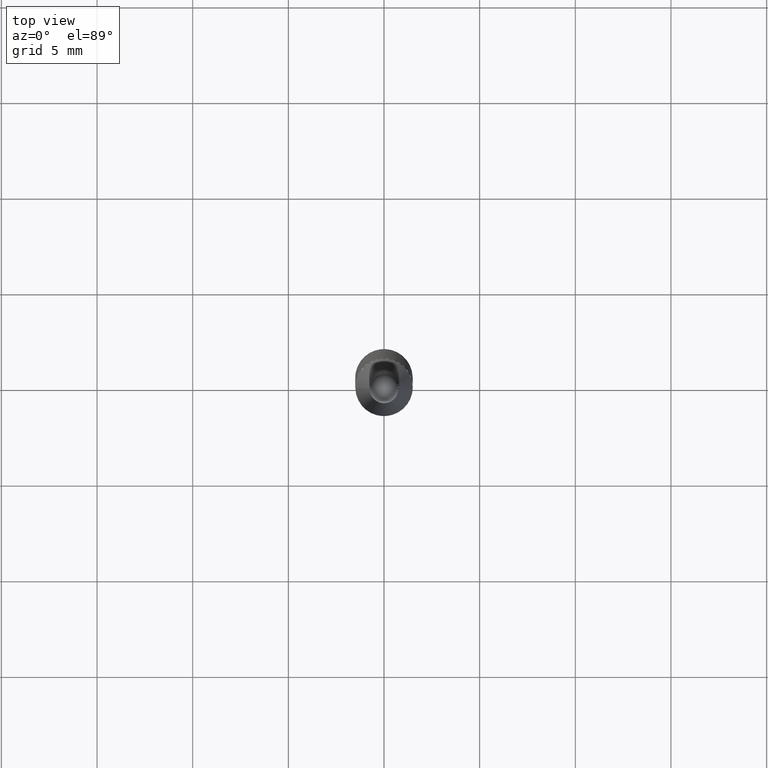
[diagram: clean part render]
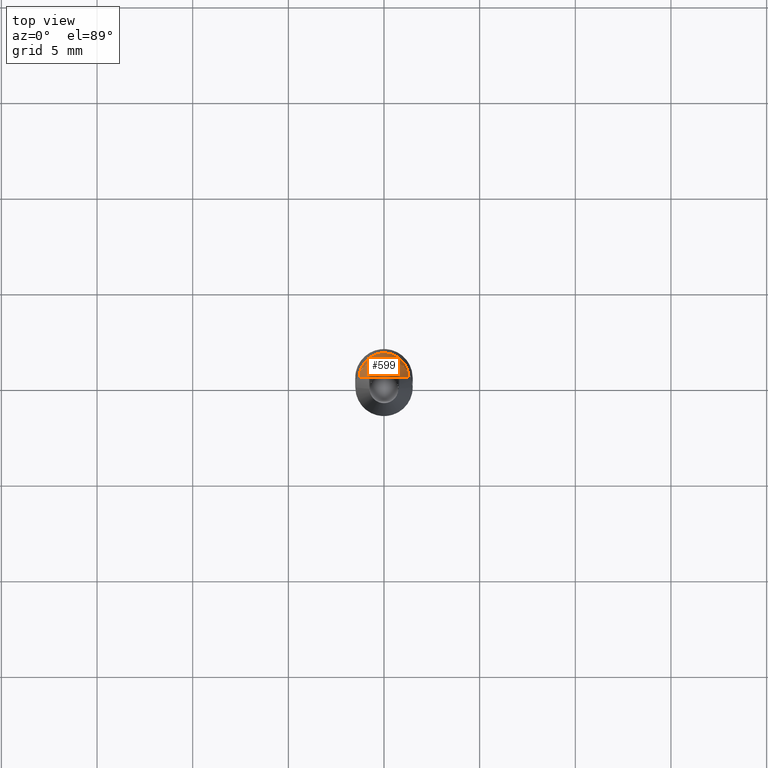
[diagram: same view with one face highlighted and labeled with its STEP entity id]
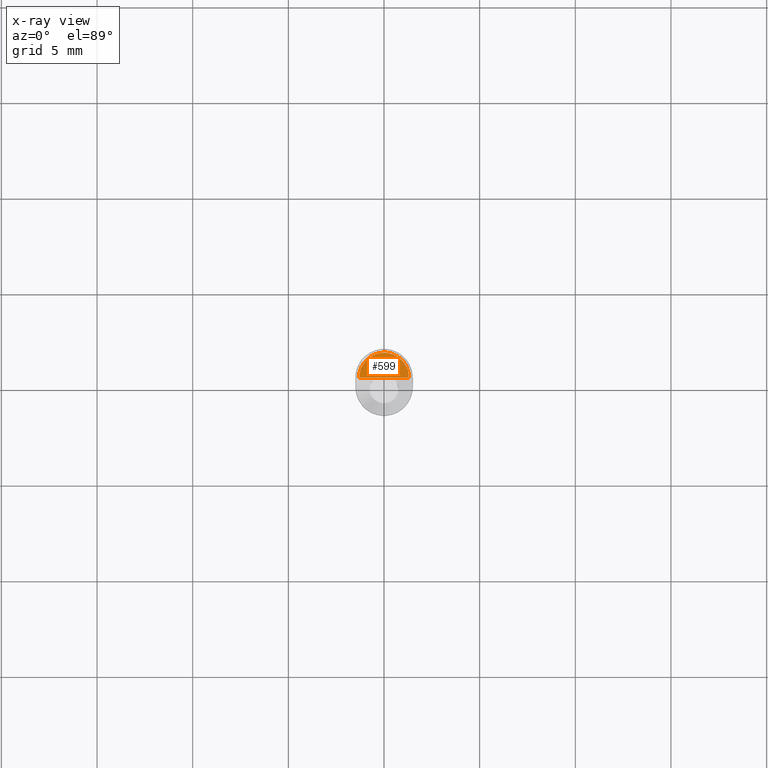
[diagram: x-ray of the same camera — body ghosted, the highlighted face saturated]
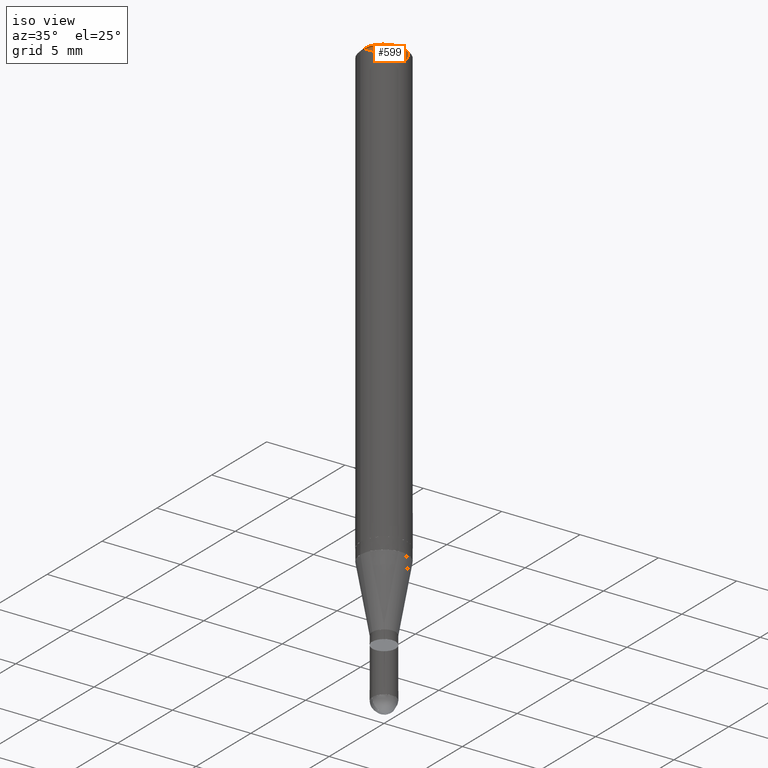
[diagram: same view with one face highlighted and labeled with its STEP entity id]
A machine part, top view. The second image highlights one B-rep face of the part: STEP entity #599.
The next image is the same camera in x-ray: the body ghosted, the highlighted face saturated — about 0% of this face is hidden behind the body in this view.
A second angle (iso view) of the same face is appended — the face is thin or edge-on in the first view.
In plain terms, the highlighted face is a freeform B-spline surface patch.
Its self-contained STEP definition (entity closure, byte-faithful):
#334=CARTESIAN_POINT('',(1.3,0.0,28.5));
#335=CARTESIAN_POINT('',(1.3,1.3,28.5));
#336=CARTESIAN_POINT('',(0.0,1.3,28.5));
#337=CARTESIAN_POINT('',(-1.3,1.3,28.5));
#338=CARTESIAN_POINT('',(-1.3,0.0,28.5));
#339=CARTESIAN_POINT('',(0.0,0.0,28.5));
#584=(
BOUNDED_SURFACE()
B_SPLINE_SURFACE(1,2,(
(#334,#335,#336,#337,#338),
(#339,#339,#339,#339,#339)
), .UNSPECIFIED.,.F.,.F.,.F.)
B_SPLINE_SURFACE_WITH_KNOTS((2,2),(3,2,3),(
0.0,1.0),(
0.0,0.5,1.0), .UNSPECIFIED.)
GEOMETRIC_REPRESENTATION_ITEM()
RATIONAL_B_SPLINE_SURFACE(((1.0,0.707106781187,1.0,0.707106781187,1.0),
(1.0,0.707106781187,1.0,0.707106781187,1.0)
))
REPRESENTATION_ITEM('')
SURFACE()
);
#585=(
BOUNDED_CURVE()
B_SPLINE_CURVE(2,(#338,#337,#336,#335,#334),.UNSPECIFIED.,.F.,.F.)
B_SPLINE_CURVE_WITH_KNOTS((3,2,3),
(0.0,0.5,1.0),.UNSPECIFIED.)
CURVE()
GEOMETRIC_REPRESENTATION_ITEM()
RATIONAL_B_SPLINE_CURVE((1.0,0.707106781187,1.0,0.707106781187,1.0))
REPRESENTATION_ITEM('')
);
#586=(
BOUNDED_CURVE()
B_SPLINE_CURVE(1,(#334,#339),.UNSPECIFIED.,.F.,.F.)
B_SPLINE_CURVE_WITH_KNOTS((2,2),
(0.0,1.0),.UNSPECIFIED.)
CURVE()
GEOMETRIC_REPRESENTATION_ITEM()
RATIONAL_B_SPLINE_CURVE((1.0,1.0))
REPRESENTATION_ITEM('')
);
#587=(
BOUNDED_CURVE()
B_SPLINE_CURVE(1,(#339,#338),.UNSPECIFIED.,.F.,.F.)
B_SPLINE_CURVE_WITH_KNOTS((2,2),
(0.0,1.0),.UNSPECIFIED.)
CURVE()
GEOMETRIC_REPRESENTATION_ITEM()
RATIONAL_B_SPLINE_CURVE((1.0,1.0))
REPRESENTATION_ITEM('')
);
#588=VERTEX_POINT('',#334);
#589=VERTEX_POINT('',#338);
#590=VERTEX_POINT('',#339);
#591=EDGE_CURVE('',#589,#588,#585,.T.);
#592=EDGE_CURVE('',#588,#590,#586,.T.);
#593=EDGE_CURVE('',#590,#589,#587,.T.);
#594=ORIENTED_EDGE('',*,*,#591,.T.);
#595=ORIENTED_EDGE('',*,*,#592,.T.);
#596=ORIENTED_EDGE('',*,*,#593,.T.);
#597=EDGE_LOOP('',(#594,#595,#596));
#598=FACE_OUTER_BOUND('',#597,.T.);
#599=ADVANCED_FACE('',(#598),#584,.T.);